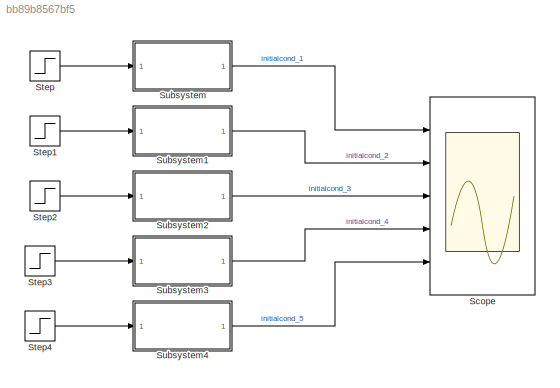
MODEL slx_bb89b8567bf5
KIND model
CONFIG AbsTol = auto
CONFIG EnableMultiTasking = off
CONFIG FixedStep = auto
CONFIG MaxStep = auto
CONFIG MinStep = auto
CONFIG RelTol = 1e-3
CONFIG SampleTimeConstraint = Unconstrained
CONFIG SolverName = VariableStepAuto
CONFIG StartTime = 0.0
CONFIG StopTime = 10.0
BLOCK [Scope] Scope
  Floating = off
  NumInputPorts = 5
  Ports = [5]
  ScopeSpecificationString = Simulink.scopes.TimeScopeBlockCfg('CurrentConfiguration', extmgr.ConfigurationSet(extmgr.Configuration('Core','General UI',true),extmgr.Configuration('Core','Source UI',true),extmgr.Configuration('Sources','WiredSimulink',true),extmgr.Configuration('Visuals','Time Domain',true,'SerializedDisplays',{struct('MinYLimReal','-6.75001','MaxYLimReal','10.75011','YLabelReal','','MinYLimMag','0.00000','Max...<+1428ch>
BLOCK [Step] Step
  After = 10
  SampleTime = 0
BLOCK [Step] Step1
  After = 10
  SampleTime = 0
BLOCK [Step] Step2
  After = 10
  SampleTime = 0
BLOCK [Step] Step3
  After = 10
  SampleTime = 0
BLOCK [Step] Step4
  After = 10
  SampleTime = 0
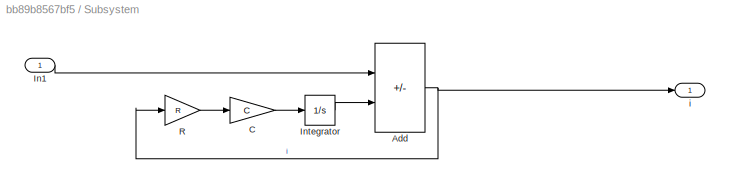
BLOCK [SubSystem] Subsystem
  Ports = [1, 1]
  RequestExecContextInheritance = off
BLOCK [Sum] Subsystem/Add
  IconShape = rectangular
  Inputs = +-
  Ports = [2, 1]
BLOCK [Gain] Subsystem/C
  Gain = C
BLOCK [Inport] Subsystem/In1
BLOCK [Integrator] Subsystem/Integrator
  InitialCondition = 1
  Ports = [1, 1]
BLOCK [Gain] Subsystem/R
  Gain = R
BLOCK [Outport] Subsystem/i
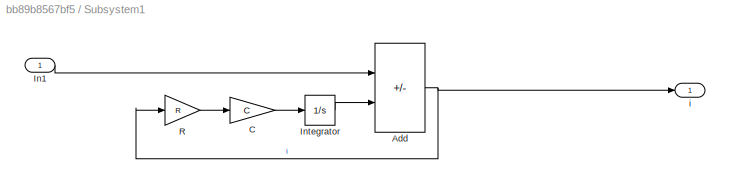
BLOCK [SubSystem] Subsystem1
  Ports = [1, 1]
  RequestExecContextInheritance = off
BLOCK [Sum] Subsystem1/Add
  IconShape = rectangular
  Inputs = +-
  Ports = [2, 1]
BLOCK [Gain] Subsystem1/C
  Gain = C
BLOCK [Inport] Subsystem1/In1
BLOCK [Integrator] Subsystem1/Integrator
  InitialCondition = 2
  Ports = [1, 1]
BLOCK [Gain] Subsystem1/R
  Gain = R
BLOCK [Outport] Subsystem1/i
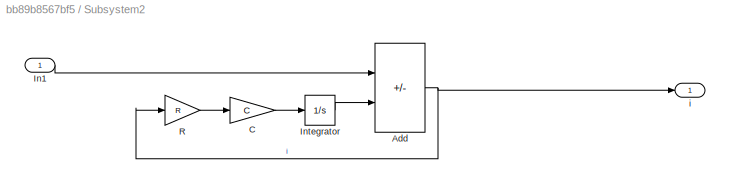
BLOCK [SubSystem] Subsystem2
  Ports = [1, 1]
  RequestExecContextInheritance = off
BLOCK [Sum] Subsystem2/Add
  IconShape = rectangular
  Inputs = +-
  Ports = [2, 1]
BLOCK [Gain] Subsystem2/C
  Gain = C
BLOCK [Inport] Subsystem2/In1
BLOCK [Integrator] Subsystem2/Integrator
  InitialCondition = 3
  Ports = [1, 1]
BLOCK [Gain] Subsystem2/R
  Gain = R
BLOCK [Outport] Subsystem2/i
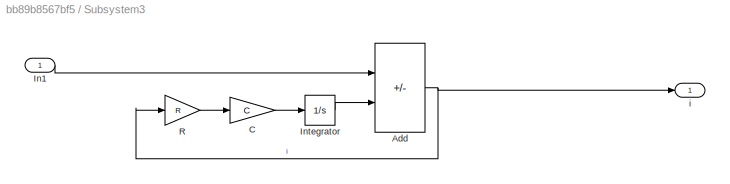
BLOCK [SubSystem] Subsystem3
  Ports = [1, 1]
  RequestExecContextInheritance = off
BLOCK [Sum] Subsystem3/Add
  IconShape = rectangular
  Inputs = +-
  Ports = [2, 1]
BLOCK [Gain] Subsystem3/C
  Gain = C
BLOCK [Inport] Subsystem3/In1
BLOCK [Integrator] Subsystem3/Integrator
  InitialCondition = 4
  Ports = [1, 1]
BLOCK [Gain] Subsystem3/R
  Gain = R
BLOCK [Outport] Subsystem3/i
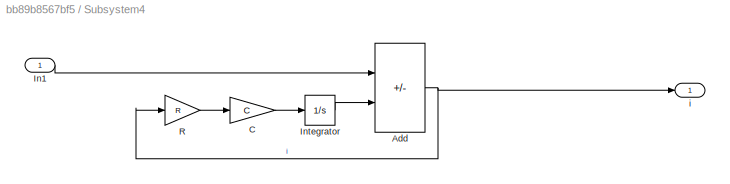
BLOCK [SubSystem] Subsystem4
  Ports = [1, 1]
  RequestExecContextInheritance = off
BLOCK [Sum] Subsystem4/Add
  IconShape = rectangular
  Inputs = +-
  Ports = [2, 1]
BLOCK [Gain] Subsystem4/C
  Gain = C
BLOCK [Inport] Subsystem4/In1
BLOCK [Integrator] Subsystem4/Integrator
  InitialCondition = 5
  Ports = [1, 1]
BLOCK [Gain] Subsystem4/R
  Gain = R
BLOCK [Outport] Subsystem4/i
LINE Step1:1 -> Subsystem1:1
LINE Step2:1 -> Subsystem2:1
LINE Step3:1 -> Subsystem3:1
LINE Step4:1 -> Subsystem4:1
LINE Step:1 -> Subsystem:1
NET Subsystem/Add:1 -> Subsystem/R:1, Subsystem/i:1
LINE Subsystem/C:1 -> Subsystem/Integrator:1
LINE Subsystem/In1:1 -> Subsystem/Add:1
LINE Subsystem/Integrator:1 -> Subsystem/Add:2
LINE Subsystem/R:1 -> Subsystem/C:1
NET Subsystem1/Add:1 -> Subsystem1/R:1, Subsystem1/i:1
LINE Subsystem1/C:1 -> Subsystem1/Integrator:1
LINE Subsystem1/In1:1 -> Subsystem1/Add:1
LINE Subsystem1/Integrator:1 -> Subsystem1/Add:2
LINE Subsystem1/R:1 -> Subsystem1/C:1
LINE Subsystem1:1 -> Scope:2
NET Subsystem2/Add:1 -> Subsystem2/R:1, Subsystem2/i:1
LINE Subsystem2/C:1 -> Subsystem2/Integrator:1
LINE Subsystem2/In1:1 -> Subsystem2/Add:1
LINE Subsystem2/Integrator:1 -> Subsystem2/Add:2
LINE Subsystem2/R:1 -> Subsystem2/C:1
LINE Subsystem2:1 -> Scope:3
NET Subsystem3/Add:1 -> Subsystem3/R:1, Subsystem3/i:1
LINE Subsystem3/C:1 -> Subsystem3/Integrator:1
LINE Subsystem3/In1:1 -> Subsystem3/Add:1
LINE Subsystem3/Integrator:1 -> Subsystem3/Add:2
LINE Subsystem3/R:1 -> Subsystem3/C:1
LINE Subsystem3:1 -> Scope:4
NET Subsystem4/Add:1 -> Subsystem4/R:1, Subsystem4/i:1
LINE Subsystem4/C:1 -> Subsystem4/Integrator:1
LINE Subsystem4/In1:1 -> Subsystem4/Add:1
LINE Subsystem4/Integrator:1 -> Subsystem4/Add:2
LINE Subsystem4/R:1 -> Subsystem4/C:1
LINE Subsystem4:1 -> Scope:5
LINE Subsystem:1 -> Scope:1
note: NET lines group one-source signal fan-out (src -> all destinations, sorted); 1:1 wires keep LINE
